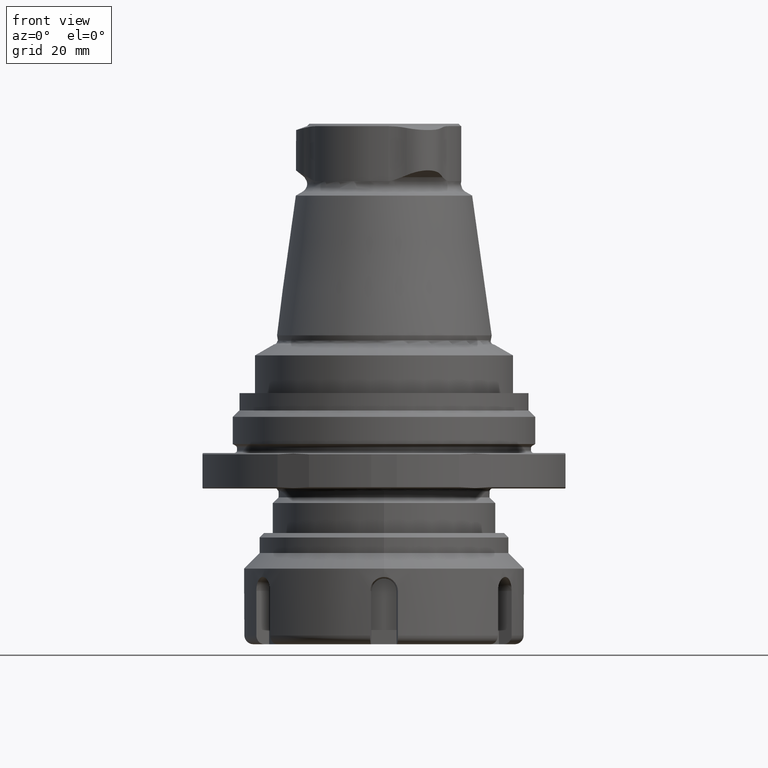
[diagram: clean part render]
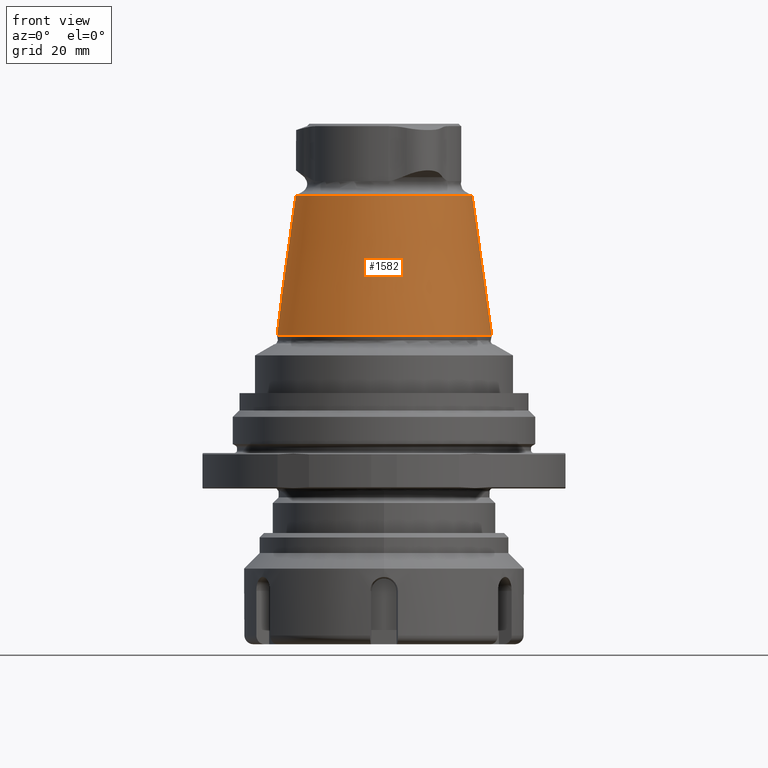
[diagram: same view with one face highlighted and labeled with its STEP entity id]
A machine part, front view. The second image highlights one B-rep face of the part: STEP entity #1582.
In plain terms, the highlighted conical surface has half-angle 7.95 deg.
Its self-contained STEP definition (entity closure, byte-faithful):
#312=CONICAL_SURFACE('',#1773,24.2110659529869,0.138753675533549);
#728=ORIENTED_EDGE('',*,*,#957,.T.);
#729=ORIENTED_EDGE('',*,*,#958,.F.);
#957=EDGE_CURVE('',#1113,#1113,#1202,.T.);
#958=EDGE_CURVE('',#1114,#1114,#1203,.T.);
#1113=VERTEX_POINT('',#2875);
#1114=VERTEX_POINT('',#2878);
#1202=CIRCLE('',#1772,19.820622068747);
#1203=CIRCLE('',#1774,24.2110659529869);
#1325=EDGE_LOOP('',(#728));
#1326=EDGE_LOOP('',(#729));
#1460=FACE_BOUND('',#1325,.T.);
#1461=FACE_BOUND('',#1326,.T.);
#1582=ADVANCED_FACE('',(#1460,#1461),#312,.T.);
#1772=AXIS2_PLACEMENT_3D('',#2874,#2209,#2210);
#1773=AXIS2_PLACEMENT_3D('',#2876,#2211,#2212);
#1774=AXIS2_PLACEMENT_3D('',#2877,#2213,#2214);
#2209=DIRECTION('',(-1.22461692971323E-16,7.49836836562635E-33,-1.));
#2210=DIRECTION('',(1.,-6.12303176911189E-17,-1.22461692971323E-16));
#2211=DIRECTION('',(-1.22461692971323E-16,7.49836836562635E-33,-1.));
#2212=DIRECTION('',(1.,-6.12303176911189E-17,-1.22461692971323E-16));
#2213=DIRECTION('',(-1.22461692971323E-16,7.49836836562635E-33,-1.));
#2214=DIRECTION('',(1.,-6.12303176911189E-17,-1.22461692971323E-16));
#2874=CARTESIAN_POINT('',(-1.97634923270405E-15,1.21012491387068E-31,56.8624545642742));
#2875=CARTESIAN_POINT('',(19.820622068747,-1.21362298610498E-15,56.8624545642742));
#2876=CARTESIAN_POINT('',(-5.82638272995627E-15,3.56751265545271E-31,25.4237784865738));
#2877=CARTESIAN_POINT('',(-5.82638272995627E-15,3.56751265545271E-31,25.4237784865738));
#2878=CARTESIAN_POINT('',(24.2110659529869,-1.48245125994202E-15,25.4237784865738));